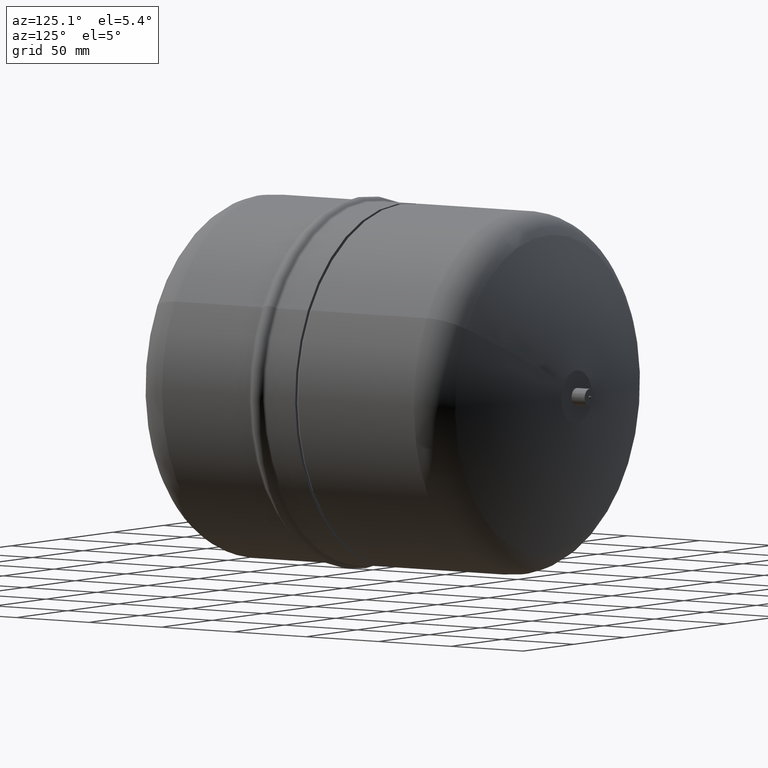
[diagram: clean part render]
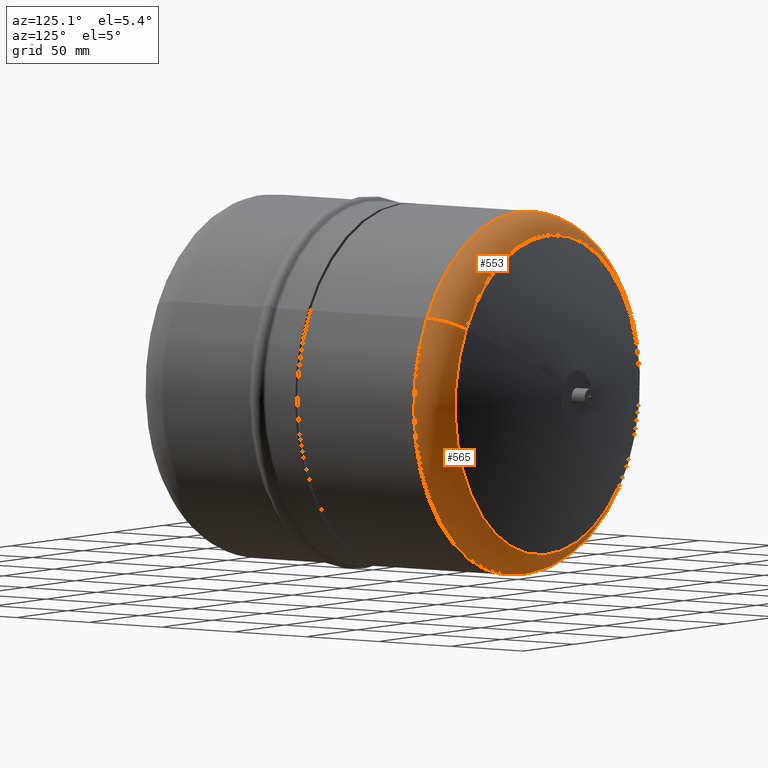
[diagram: same view with one multi-face feature highlighted, each face labeled with its STEP entity id]
A machine part, auxiliary view. The highlighted faces form ONE feature: a constant-radius fillet chain: 2 tangent blend faces with common blend radius 22 mm. The faces share edges in the B-rep.
Their STEP definitions:
[1] entity #553 (Torus):
#494=AXIS2_PLACEMENT_3D('Circle Axis2P3D',#492,#493,$) ;
#526=AXIS2_PLACEMENT_3D('Torus Axis2P3D',#523,#524,#525) ;
#530=AXIS2_PLACEMENT_3D('Circle Axis2P3D',#528,#529,$) ;
#537=AXIS2_PLACEMENT_3D('Circle Axis2P3D',#535,#536,$) ;
#544=AXIS2_PLACEMENT_3D('Circle Axis2P3D',#542,#543,$) ;
#489=CARTESIAN_POINT('Vertex',(90.3910038747,235.978125578,49.3808304762)) ;
#492=CARTESIAN_POINT('Axis2P3D Location',(0.,235.978125578,0.)) ;
#496=CARTESIAN_POINT('Vertex',(-90.3910038747,235.978125578,-49.3808304762)) ;
#523=CARTESIAN_POINT('Axis2P3D Location',(0.,235.978125578,0.)) ;
#528=CARTESIAN_POINT('Axis2P3D Location',(71.0841875131,235.978125578,38.8334686269)) ;
#532=CARTESIAN_POINT('Vertex',(79.4919946383,255.782449305,43.4266745936)) ;
#535=CARTESIAN_POINT('Axis2P3D Location',(0.,255.782449305,0.)) ;
#539=CARTESIAN_POINT('Vertex',(-79.4919946383,255.782449305,-43.4266745936)) ;
#542=CARTESIAN_POINT('Axis2P3D Location',(-71.0841875131,235.978125578,-38.8334686269)) ;
#493=DIRECTION('Axis2P3D Direction',(0.,-1.,0.)) ;
#524=DIRECTION('Axis2P3D Direction',(0.,-1.,0.)) ;
#525=DIRECTION('Axis2P3D XDirection',(0.87758256189,0.,0.479425538604)) ;
#529=DIRECTION('Axis2P3D Direction',(0.479425538604,0.,-0.87758256189)) ;
#536=DIRECTION('Axis2P3D Direction',(0.,-1.,0.)) ;
#543=DIRECTION('Axis2P3D Direction',(-0.479425538604,0.,0.87758256189)) ;
#548=ORIENTED_EDGE('',*,*,#498,.F.) ;
#549=ORIENTED_EDGE('',*,*,#534,.T.) ;
#550=ORIENTED_EDGE('',*,*,#541,.T.) ;
#551=ORIENTED_EDGE('',*,*,#546,.F.) ;
#553=ADVANCED_FACE('Hauptk\X2\00F6\X0\rper',(#552),#527,.T.) ;
#495=CIRCLE('generated circle',#494,103.) ;
#531=CIRCLE('generated circle',#530,22.) ;
#538=CIRCLE('generated circle',#537,90.5806451613) ;
#545=CIRCLE('generated circle',#544,22.) ;
#527=TOROIDAL_SURFACE('homeo Torus',#526,81.,22.) ;
#498=EDGE_CURVE('',#490,#497,#495,.T.) ;
#534=EDGE_CURVE('',#490,#533,#531,.F.) ;
#541=EDGE_CURVE('',#533,#540,#538,.T.) ;
#546=EDGE_CURVE('',#497,#540,#545,.F.) ;
#547=EDGE_LOOP('',(#548,#549,#550,#551)) ;
#552=FACE_OUTER_BOUND('',#547,.T.) ;
#490=VERTEX_POINT('',#489) ;
#497=VERTEX_POINT('',#496) ;
#533=VERTEX_POINT('',#532) ;
#540=VERTEX_POINT('',#539) ;
[2] entity #565 (Torus):
#513=AXIS2_PLACEMENT_3D('Circle Axis2P3D',#511,#512,$) ;
#526=AXIS2_PLACEMENT_3D('Torus Axis2P3D',#523,#524,#525) ;
#530=AXIS2_PLACEMENT_3D('Circle Axis2P3D',#528,#529,$) ;
#544=AXIS2_PLACEMENT_3D('Circle Axis2P3D',#542,#543,$) ;
#556=AXIS2_PLACEMENT_3D('Circle Axis2P3D',#554,#555,$) ;
#489=CARTESIAN_POINT('Vertex',(90.3910038747,235.978125578,49.3808304762)) ;
#496=CARTESIAN_POINT('Vertex',(-90.3910038747,235.978125578,-49.3808304762)) ;
#511=CARTESIAN_POINT('Axis2P3D Location',(0.,235.978125578,0.)) ;
#523=CARTESIAN_POINT('Axis2P3D Location',(0.,235.978125578,0.)) ;
#528=CARTESIAN_POINT('Axis2P3D Location',(71.0841875131,235.978125578,38.8334686269)) ;
#532=CARTESIAN_POINT('Vertex',(79.4919946383,255.782449305,43.4266745936)) ;
#539=CARTESIAN_POINT('Vertex',(-79.4919946383,255.782449305,-43.4266745936)) ;
#542=CARTESIAN_POINT('Axis2P3D Location',(-71.0841875131,235.978125578,-38.8334686269)) ;
#554=CARTESIAN_POINT('Axis2P3D Location',(0.,255.782449305,0.)) ;
#512=DIRECTION('Axis2P3D Direction',(0.,-1.,0.)) ;
#524=DIRECTION('Axis2P3D Direction',(0.,-1.,0.)) ;
#525=DIRECTION('Axis2P3D XDirection',(0.87758256189,0.,0.479425538604)) ;
#529=DIRECTION('Axis2P3D Direction',(0.479425538604,0.,-0.87758256189)) ;
#543=DIRECTION('Axis2P3D Direction',(-0.479425538604,0.,0.87758256189)) ;
#555=DIRECTION('Axis2P3D Direction',(0.,-1.,0.)) ;
#560=ORIENTED_EDGE('',*,*,#515,.F.) ;
#561=ORIENTED_EDGE('',*,*,#546,.T.) ;
#562=ORIENTED_EDGE('',*,*,#558,.T.) ;
#563=ORIENTED_EDGE('',*,*,#534,.F.) ;
#565=ADVANCED_FACE('Hauptk\X2\00F6\X0\rper',(#564),#527,.T.) ;
#514=CIRCLE('generated circle',#513,103.) ;
#531=CIRCLE('generated circle',#530,22.) ;
#545=CIRCLE('generated circle',#544,22.) ;
#557=CIRCLE('generated circle',#556,90.5806451613) ;
#527=TOROIDAL_SURFACE('homeo Torus',#526,81.,22.) ;
#515=EDGE_CURVE('',#497,#490,#514,.T.) ;
#534=EDGE_CURVE('',#490,#533,#531,.F.) ;
#546=EDGE_CURVE('',#497,#540,#545,.F.) ;
#558=EDGE_CURVE('',#540,#533,#557,.T.) ;
#559=EDGE_LOOP('',(#560,#561,#562,#563)) ;
#564=FACE_OUTER_BOUND('',#559,.T.) ;
#490=VERTEX_POINT('',#489) ;
#497=VERTEX_POINT('',#496) ;
#533=VERTEX_POINT('',#532) ;
#540=VERTEX_POINT('',#539) ;